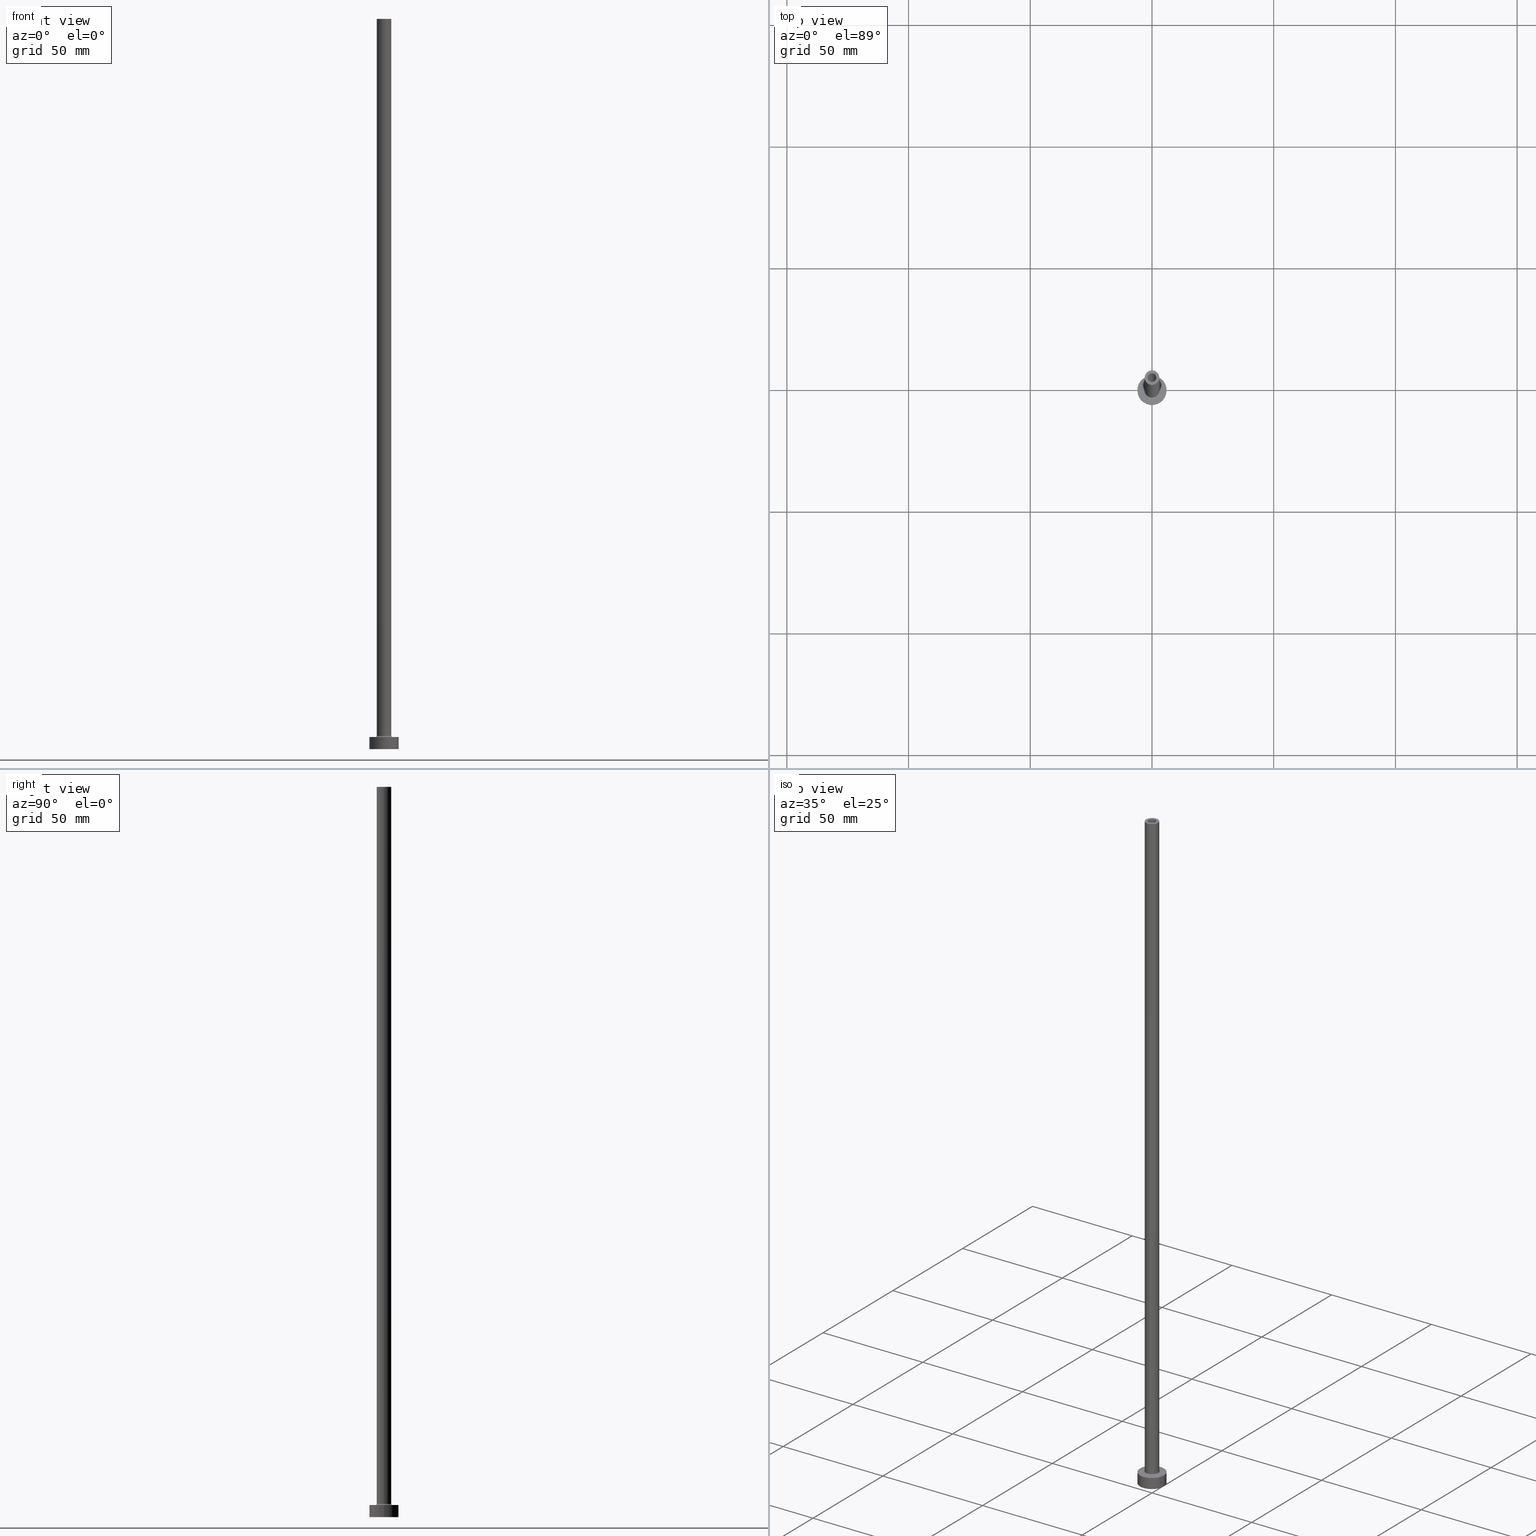
[diagram: canonical four-view strip — front | top / right | iso, engineering-drawing reading convention]
A machine part, canonical four-view strip (front | top / right | iso — engineering-drawing reading convention). The complete STEP part file that produces these views, byte-faithful:
ISO-10303-21;
HEADER;
FILE_DESCRIPTION (( 'STEP AP203' ),
    '1' );
FILE_NAME ('319c.STEP',
    '2023-02-13T17:50:03',
    ( '' ),
    ( '' ),
    'SwSTEP 2.0',
    'SolidWorks 2019',
    '' );
FILE_SCHEMA (( 'CONFIG_CONTROL_DESIGN' ));
ENDSEC;

DATA;
#1 = CC_DESIGN_PERSON_AND_ORGANIZATION_ASSIGNMENT ( #216, #87, ( #276 ) ) ;
#2 = LINE ( 'NONE', #259, #336 ) ;
#3 = VECTOR ( 'NONE', #429, 1000.000000000000000 ) ;
#4 = DIRECTION ( 'NONE',  ( 0.000000000000000000, -1.000000000000000000, 0.000000000000000000 ) ) ;
#5 = CIRCLE ( 'NONE', #277, 3.500000000000000444 ) ;
#6 = AXIS2_PLACEMENT_3D ( 'NONE', #55, #242, #278 ) ;
#7 = ORIENTED_EDGE ( 'NONE', *, *, #350, .F. ) ;
#8 = PERSON_AND_ORGANIZATION ( #438, #120 ) ;
#9 = VERTEX_POINT ( 'NONE', #264 ) ;
#10 = CARTESIAN_POINT ( 'NONE',  ( 0.000000000000000000, 0.000000000000000000, 300.0000000000000000 ) ) ;
#11 = SECURITY_CLASSIFICATION_LEVEL ( 'unclassified' ) ;
#12 = EDGE_CURVE ( 'NONE', #323, #47, #190, .T. ) ;
#13 = CARTESIAN_POINT ( 'NONE',  ( -3.000000000000000444, 0.000000000000000000, 300.0000000000000000 ) ) ;
#14 = CIRCLE ( 'NONE', #408, 1.899999999999999911 ) ;
#15 = AXIS2_PLACEMENT_3D ( 'NONE', #97, #341, #414 ) ;
#16 = EDGE_CURVE ( 'NONE', #47, #347, #5, .T. ) ;
#17 = FACE_OUTER_BOUND ( 'NONE', #330, .T. ) ;
#18 = VERTEX_POINT ( 'NONE', #227 ) ;
#19 = CARTESIAN_POINT ( 'NONE',  ( 0.000000000000000000, 0.000000000000000000, 260.3740115370177932 ) ) ;
#20 = ORIENTED_EDGE ( 'NONE', *, *, #176, .T. ) ;
#21 = CIRCLE ( 'NONE', #119, 3.500000000000000444 ) ;
#22 = PERSON_AND_ORGANIZATION_ROLE ( 'creator' ) ;
#23 = DIRECTION ( 'NONE',  ( 0.000000000000000000, 0.000000000000000000, 1.000000000000000000 ) ) ;
#24 = ORIENTED_EDGE ( 'NONE', *, *, #246, .T. ) ;
#25 = DIRECTION ( 'NONE',  ( -0.000000000000000000, -0.000000000000000000, -1.000000000000000000 ) ) ;
#26 = CYLINDRICAL_SURFACE ( 'NONE', #104, 1.750000000000000000 ) ;
#27 = CALENDAR_DATE ( 2023, 13, 2 ) ;
#28 = CIRCLE ( 'NONE', #298, 3.000000000000000444 ) ;
#29 = DIRECTION ( 'NONE',  ( 1.000000000000000000, 0.000000000000000000, 0.000000000000000000 ) ) ;
#30 = DIRECTION ( 'NONE',  ( 0.000000000000000000, 0.000000000000000000, 1.000000000000000000 ) ) ;
#31 = DIRECTION ( 'NONE',  ( -1.000000000000000000, 0.000000000000000000, 0.000000000000000000 ) ) ;
#32 = FACE_OUTER_BOUND ( 'NONE', #351, .T. ) ;
#33 = DATE_AND_TIME ( #368, #89 ) ;
#34 = CARTESIAN_POINT ( 'NONE',  ( -1.899999999999999911, 0.000000000000000000, 255.0000000000000000 ) ) ;
#35 = VECTOR ( 'NONE', #394, 1000.000000000000000 ) ;
#36 = VERTEX_POINT ( 'NONE', #34 ) ;
#37 = AXIS2_PLACEMENT_3D ( 'NONE', #114, #398, #304 ) ;
#38 = ADVANCED_FACE ( 'NONE', ( #65 ), #460, .F. ) ;
#39 = DIRECTION ( 'NONE',  ( 0.000000000000000000, 0.000000000000000000, -1.000000000000000000 ) ) ;
#40 = PERSON_AND_ORGANIZATION ( #438, #120 ) ;
#41 = EDGE_CURVE ( 'NONE', #295, #254, #444, .T. ) ;
#42 = DATE_TIME_ROLE ( 'classification_date' ) ;
#43 = APPROVAL ( #166, 'NEUR�EN�' ) ;
#44 = LINE ( 'NONE', #13, #77 ) ;
#45 = PRODUCT_DEFINITION_SHAPE ( 'NONE', 'NONE',  #196 ) ;
#46 = CARTESIAN_POINT ( 'NONE',  ( 0.000000000000000000, 0.000000000000000000, 255.0000000000000000 ) ) ;
#47 = VERTEX_POINT ( 'NONE', #103 ) ;
#48 = DIRECTION ( 'NONE',  ( 0.000000000000000000, 0.000000000000000000, 1.000000000000000000 ) ) ;
#49 = ORIENTED_EDGE ( 'NONE', *, *, #407, .T. ) ;
#50 = ADVANCED_FACE ( 'NONE', ( #309 ), #141, .F. ) ;
#51 = AXIS2_PLACEMENT_3D ( 'NONE', #459, #153, #169 ) ;
#52 = EDGE_LOOP ( 'NONE', ( #452, #431 ) ) ;
#53 = EDGE_LOOP ( 'NONE', ( #251, #285, #138, #59 ) ) ;
#54 = CYLINDRICAL_SURFACE ( 'NONE', #161, 3.000000000000000444 ) ;
#55 = CARTESIAN_POINT ( 'NONE',  ( 0.000000000000000000, 0.000000000000000000, 5.000000000000000000 ) ) ;
#56 = ORIENTED_EDGE ( 'NONE', *, *, #83, .F. ) ;
#57 = FACE_OUTER_BOUND ( 'NONE', #173, .T. ) ;
#58 = ORIENTED_EDGE ( 'NONE', *, *, #126, .F. ) ;
#59 = ORIENTED_EDGE ( 'NONE', *, *, #67, .T. ) ;
#60 = AXIS2_PLACEMENT_3D ( 'NONE', #116, #4, #39 ) ;
#61 = PERSON_AND_ORGANIZATION_ROLE ( 'creator' ) ;
#62 = AXIS2_PLACEMENT_3D ( 'NONE', #245, #133, #377 ) ;
#63 = DIRECTION ( 'NONE',  ( 0.000000000000000000, 0.000000000000000000, 1.000000000000000000 ) ) ;
#64 = EDGE_CURVE ( 'NONE', #335, #323, #44, .T. ) ;
#65 = FACE_OUTER_BOUND ( 'NONE', #158, .T. ) ;
#66 = APPROVAL_STATUS ( 'not_yet_approved' ) ;
#67 = EDGE_CURVE ( 'NONE', #84, #288, #91, .T. ) ;
#68 = CARTESIAN_POINT ( 'NONE',  ( 0.000000000000000000, 0.000000000000000000, 5.000000000000000000 ) ) ;
#69 = APPROVAL_STATUS ( 'not_yet_approved' ) ;
#70 = CARTESIAN_POINT ( 'NONE',  ( 0.000000000000000000, 0.000000000000000000, 5.500000000000005329 ) ) ;
#71 = DESIGN_CONTEXT ( 'detailed design', #334, 'design' ) ;
#72 = CARTESIAN_POINT ( 'NONE',  ( 0.000000000000000000, 0.000000000000000000, 0.000000000000000000 ) ) ;
#73 = APPROVAL_ROLE ( '' ) ;
#74 = AXIS2_PLACEMENT_3D ( 'NONE', #184, #146, #416 ) ;
#75 = SECURITY_CLASSIFICATION ( '', '', #11 ) ;
#76 = CYLINDRICAL_SURFACE ( 'NONE', #134, 1.899999999999999911 ) ;
#77 = VECTOR ( 'NONE', #203, 1000.000000000000000 ) ;
#78 = PERSON_AND_ORGANIZATION_ROLE ( 'classification_officer' ) ;
#79 = ORIENTED_EDGE ( 'NONE', *, *, #332, .F. ) ;
#80 = DIRECTION ( 'NONE',  ( -0.000000000000000000, -0.000000000000000000, -1.000000000000000000 ) ) ;
#81 = PERSON_AND_ORGANIZATION_ROLE ( 'design_owner' ) ;
#82 = SHAPE_DEFINITION_REPRESENTATION ( #45, #226 ) ;
#83 = EDGE_CURVE ( 'NONE', #254, #295, #136, .T. ) ;
#84 = VERTEX_POINT ( 'NONE', #305 ) ;
#85 = PRODUCT_RELATED_PRODUCT_CATEGORY ( 'detail', '', ( #130 ) ) ;
#86 = DIRECTION ( 'NONE',  ( 1.000000000000000000, 0.000000000000000000, 0.000000000000000000 ) ) ;
#87 = PERSON_AND_ORGANIZATION_ROLE ( 'design_supplier' ) ;
#88 = CIRCLE ( 'NONE', #342, 3.000000000000000444 ) ;
#89 = LOCAL_TIME ( 18, 50, 3.000000000000000000, #170 ) ;
#90 = UNCERTAINTY_MEASURE_WITH_UNIT (LENGTH_MEASURE( 1.000000000000000082E-05 ), #364, 'distance_accuracy_value', 'NONE');
#91 = CIRCLE ( 'NONE', #62, 1.899999999999999911 ) ;
#92 = DIRECTION ( 'NONE',  ( 1.000000000000000000, 0.000000000000000000, 0.000000000000000000 ) ) ;
#93 = DIRECTION ( 'NONE',  ( -0.000000000000000000, -0.000000000000000000, -1.000000000000000000 ) ) ;
#94 = APPROVAL_ROLE ( '' ) ;
#95 = CC_DESIGN_PERSON_AND_ORGANIZATION_ASSIGNMENT ( #191, #22, ( #196 ) ) ;
#96 = FACE_OUTER_BOUND ( 'NONE', #175, .T. ) ;
#97 = CARTESIAN_POINT ( 'NONE',  ( 0.000000000000000000, 0.000000000000000000, 5.500000000000005329 ) ) ;
#98 = CARTESIAN_POINT ( 'NONE',  ( -6.000000000000000888, 0.000000000000000000, 5.000000000000000000 ) ) ;
#99 = VECTOR ( 'NONE', #343, 1000.000000000000000 ) ;
#100 = LOCAL_TIME ( 18, 50, 3.000000000000000000, #453 ) ;
#101 = DIRECTION ( 'NONE',  ( 0.000000000000000000, 0.000000000000000000, 1.000000000000000000 ) ) ;
#102 = EDGE_LOOP ( 'NONE', ( #228, #378 ) ) ;
#103 = CARTESIAN_POINT ( 'NONE',  ( -3.500000000000000444, 4.286263797015737088E-16, 5.000000000000002665 ) ) ;
#104 = AXIS2_PLACEMENT_3D ( 'NONE', #162, #187, #289 ) ;
#105 = APPLICATION_PROTOCOL_DEFINITION ( 'international standard', 'config_control_design', 1994, #334 ) ;
#106 = VERTEX_POINT ( 'NONE', #413 ) ;
#107 = APPROVAL_DATE_TIME ( #118, #434 ) ;
#108 = AXIS2_PLACEMENT_3D ( 'NONE', #426, #111, #396 ) ;
#109 = ORIENTED_EDGE ( 'NONE', *, *, #344, .T. ) ;
#110 = CARTESIAN_POINT ( 'NONE',  ( 0.000000000000000000, 0.000000000000000000, 255.0000000000000000 ) ) ;
#111 = DIRECTION ( 'NONE',  ( 0.000000000000000000, 0.000000000000000000, 1.000000000000000000 ) ) ;
#112 = ADVANCED_FACE ( 'NONE', ( #17 ), #244, .T. ) ;
#113 = CARTESIAN_POINT ( 'NONE',  ( 1.750000000000000000, 2.143131898507867804E-16, 300.0000000000000000 ) ) ;
#114 = CARTESIAN_POINT ( 'NONE',  ( 0.000000000000000000, 0.000000000000000000, 300.0000000000000000 ) ) ;
#115 = CARTESIAN_POINT ( 'NONE',  ( 0.000000000000000000, 0.000000000000000000, 255.0000000000000000 ) ) ;
#116 = CARTESIAN_POINT ( 'NONE',  ( 3.500000000000000444, 0.000000000000000000, 5.500000000000005329 ) ) ;
#117 = DIRECTION ( 'NONE',  ( 0.000000000000000000, 0.000000000000000000, 1.000000000000000000 ) ) ;
#118 = DATE_AND_TIME ( #221, #349 ) ;
#119 = AXIS2_PLACEMENT_3D ( 'NONE', #127, #172, #412 ) ;
#120 = ORGANIZATION ( 'NEUR�EN�', 'NEUR�EN�', '' ) ;
#121 = CYLINDRICAL_SURFACE ( 'NONE', #387, 6.000000000000000888 ) ;
#122 = APPROVAL_DATE_TIME ( #160, #43 ) ;
#123 = FACE_OUTER_BOUND ( 'NONE', #149, .T. ) ;
#124 = PERSON_AND_ORGANIZATION ( #438, #120 ) ;
#125 = AXIS2_PLACEMENT_3D ( 'NONE', #46, #63, #255 ) ;
#126 = EDGE_CURVE ( 'NONE', #288, #84, #367, .T. ) ;
#127 = CARTESIAN_POINT ( 'NONE',  ( 0.000000000000000000, 0.000000000000000000, 5.000000000000000000 ) ) ;
#128 = AXIS2_PLACEMENT_3D ( 'NONE', #249, #381, #300 ) ;
#129 = DIRECTION ( 'NONE',  ( 1.000000000000000000, 0.000000000000000000, 0.000000000000000000 ) ) ;
#130 = PRODUCT ( '319c', '319c', '', ( #274 ) ) ;
#131 = ORIENTED_EDGE ( 'NONE', *, *, #308, .T. ) ;
#132 =( NAMED_UNIT ( * ) SI_UNIT ( $, .STERADIAN. ) SOLID_ANGLE_UNIT ( ) );
#133 = DIRECTION ( 'NONE',  ( -0.000000000000000000, -0.000000000000000000, -1.000000000000000000 ) ) ;
#134 = AXIS2_PLACEMENT_3D ( 'NONE', #222, #362, #31 ) ;
#135 = LOCAL_TIME ( 18, 50, 3.000000000000000000, #405 ) ;
#136 = CIRCLE ( 'NONE', #202, 6.000000000000000888 ) ;
#137 = EDGE_CURVE ( 'NONE', #9, #443, #194, .T. ) ;
#138 = ORIENTED_EDGE ( 'NONE', *, *, #192, .T. ) ;
#139 = CC_DESIGN_PERSON_AND_ORGANIZATION_ASSIGNMENT ( #404, #81, ( #130 ) ) ;
#140 = ORIENTED_EDGE ( 'NONE', *, *, #199, .T. ) ;
#141 = CYLINDRICAL_SURFACE ( 'NONE', #145, 1.899999999999999911 ) ;
#142 = ORIENTED_EDGE ( 'NONE', *, *, #411, .T. ) ;
#143 = EDGE_LOOP ( 'NONE', ( #24, #142, #385, #352 ) ) ;
#144 = LOCAL_TIME ( 18, 50, 3.000000000000000000, #284 ) ;
#145 = AXIS2_PLACEMENT_3D ( 'NONE', #19, #339, #209 ) ;
#146 = DIRECTION ( 'NONE',  ( 0.000000000000000000, 0.000000000000000000, 1.000000000000000000 ) ) ;
#147 = VERTEX_POINT ( 'NONE', #324 ) ;
#148 = DIRECTION ( 'NONE',  ( -0.000000000000000000, -0.000000000000000000, -1.000000000000000000 ) ) ;
#149 = EDGE_LOOP ( 'NONE', ( #406, #390, #180, #79 ) ) ;
#150 = ADVANCED_FACE ( 'NONE', ( #346, #389 ), #451, .T. ) ;
#151 = CARTESIAN_POINT ( 'NONE',  ( 0.000000000000000000, 0.000000000000000000, 300.0000000000000000 ) ) ;
#152 = VERTEX_POINT ( 'NONE', #359 ) ;
#153 = DIRECTION ( 'NONE',  ( 0.000000000000000000, 0.000000000000000000, 1.000000000000000000 ) ) ;
#154 = DIRECTION ( 'NONE',  ( 1.000000000000000000, 0.000000000000000000, -0.000000000000000000 ) ) ;
#155 = CARTESIAN_POINT ( 'NONE',  ( 0.000000000000000000, 0.000000000000000000, 300.0000000000000000 ) ) ;
#156 = ADVANCED_FACE ( 'NONE', ( #225, #322 ), #157, .F. ) ;
#157 = PLANE ( 'NONE',  #239 ) ;
#158 = EDGE_LOOP ( 'NONE', ( #198, #207, #266, #186 ) ) ;
#159 = DIRECTION ( 'NONE',  ( 0.000000000000000000, 0.000000000000000000, -1.000000000000000000 ) ) ;
#160 = DATE_AND_TIME ( #197, #135 ) ;
#161 = AXIS2_PLACEMENT_3D ( 'NONE', #177, #448, #253 ) ;
#162 = CARTESIAN_POINT ( 'NONE',  ( 0.000000000000000000, 0.000000000000000000, 300.0000000000000000 ) ) ;
#163 = EDGE_CURVE ( 'NONE', #233, #152, #403, .T. ) ;
#164 = ORIENTED_EDGE ( 'NONE', *, *, #246, .F. ) ;
#165 = CC_DESIGN_DATE_AND_TIME_ASSIGNMENT ( #292, #421, ( #196 ) ) ;
#166 = APPROVAL_STATUS ( 'not_yet_approved' ) ;
#167 = ADVANCED_FACE ( 'NONE', ( #365, #397 ), #355, .F. ) ;
#168 = EDGE_LOOP ( 'NONE', ( #369, #58 ) ) ;
#169 = DIRECTION ( 'NONE',  ( 1.000000000000000000, 0.000000000000000000, 0.000000000000000000 ) ) ;
#170 = COORDINATED_UNIVERSAL_TIME_OFFSET ( 1, 0, .AHEAD. ) ;
#171 = DIRECTION ( 'NONE',  ( 0.000000000000000000, 0.000000000000000000, -1.000000000000000000 ) ) ;
#172 = DIRECTION ( 'NONE',  ( -0.000000000000000000, -0.000000000000000000, -1.000000000000000000 ) ) ;
#173 = EDGE_LOOP ( 'NONE', ( #283, #174, #182, #218 ) ) ;
#174 = ORIENTED_EDGE ( 'NONE', *, *, #12, .T. ) ;
#175 = EDGE_LOOP ( 'NONE', ( #393, #140 ) ) ;
#176 = EDGE_CURVE ( 'NONE', #443, #347, #306, .T. ) ;
#177 = CARTESIAN_POINT ( 'NONE',  ( 0.000000000000000000, 0.000000000000000000, 300.0000000000000000 ) ) ;
#178 = CIRCLE ( 'NONE', #125, 1.750000000000000000 ) ;
#179 =( GEOMETRIC_REPRESENTATION_CONTEXT ( 3 ) GLOBAL_UNCERTAINTY_ASSIGNED_CONTEXT ( ( #90 ) ) GLOBAL_UNIT_ASSIGNED_CONTEXT ( ( #364, #267, #132 ) ) REPRESENTATION_CONTEXT ( 'NONE', 'WORKASPACE' ) );
#180 = ORIENTED_EDGE ( 'NONE', *, *, #392, .F. ) ;
#181 = CALENDAR_DATE ( 2023, 13, 2 ) ;
#182 = ORIENTED_EDGE ( 'NONE', *, *, #344, .F. ) ;
#183 = DATE_AND_TIME ( #27, #100 ) ;
#184 = CARTESIAN_POINT ( 'NONE',  ( 0.000000000000000000, 0.000000000000000000, 5.000000000000000000 ) ) ;
#185 = DIRECTION ( 'NONE',  ( 1.000000000000000000, 0.000000000000000000, 0.000000000000000000 ) ) ;
#186 = ORIENTED_EDGE ( 'NONE', *, *, #407, .F. ) ;
#187 = DIRECTION ( 'NONE',  ( 0.000000000000000000, 0.000000000000000000, -1.000000000000000000 ) ) ;
#188 = TOROIDAL_SURFACE ( 'NONE', #108, 3.500000000000000444, 0.5000000000000000000 ) ;
#189 = DIRECTION ( 'NONE',  ( -0.000000000000000000, -0.000000000000000000, -1.000000000000000000 ) ) ;
#190 = CIRCLE ( 'NONE', #206, 0.4999999999999995559 ) ;
#191 = PERSON_AND_ORGANIZATION ( #438, #120 ) ;
#192 = EDGE_CURVE ( 'NONE', #36, #84, #2, .T. ) ;
#193 = CARTESIAN_POINT ( 'NONE',  ( 6.000000000000000888, 7.347880794884120722E-16, 5.000000000000000000 ) ) ;
#194 = LINE ( 'NONE', #293, #3 ) ;
#195 = ORIENTED_EDGE ( 'NONE', *, *, #370, .T. ) ;
#196 = PRODUCT_DEFINITION ( 'NEZN�M�', '', #276, #71 ) ;
#197 = CALENDAR_DATE ( 2023, 13, 2 ) ;
#198 = ORIENTED_EDGE ( 'NONE', *, *, #163, .F. ) ;
#199 = EDGE_CURVE ( 'NONE', #9, #335, #28, .T. ) ;
#200 = AXIS2_PLACEMENT_3D ( 'NONE', #70, #354, #320 ) ;
#201 = CARTESIAN_POINT ( 'NONE',  ( 0.000000000000000000, 0.000000000000000000, 300.0000000000000000 ) ) ;
#202 = AXIS2_PLACEMENT_3D ( 'NONE', #374, #48, #282 ) ;
#203 = DIRECTION ( 'NONE',  ( -0.000000000000000000, -0.000000000000000000, -1.000000000000000000 ) ) ;
#204 = ORIENTED_EDGE ( 'NONE', *, *, #371, .F. ) ;
#205 = CIRCLE ( 'NONE', #372, 6.000000000000000888 ) ;
#206 = AXIS2_PLACEMENT_3D ( 'NONE', #395, #294, #427 ) ;
#207 = ORIENTED_EDGE ( 'NONE', *, *, #340, .T. ) ;
#208 = MANIFOLD_SOLID_BREP ( 'Odebrat vysunut�m4', #215 ) ;
#209 = DIRECTION ( 'NONE',  ( -1.000000000000000000, 0.000000000000000000, 0.000000000000000000 ) ) ;
#210 = ADVANCED_FACE ( 'NONE', ( #123 ), #26, .F. ) ;
#211 = ORIENTED_EDGE ( 'NONE', *, *, #16, .F. ) ;
#212 = DIRECTION ( 'NONE',  ( 1.000000000000000000, 0.000000000000000000, 0.000000000000000000 ) ) ;
#213 = CIRCLE ( 'NONE', #436, 6.000000000000000888 ) ;
#214 = EDGE_LOOP ( 'NONE', ( #311, #419, #316, #131 ) ) ;
#215 = CLOSED_SHELL ( 'NONE', ( #210, #270, #447, #291, #280, #112, #150, #167, #423, #383, #235, #50, #156, #38 ) ) ;
#216 = PERSON_AND_ORGANIZATION ( #438, #120 ) ;
#217 = LINE ( 'NONE', #376, #99 ) ;
#218 = ORIENTED_EDGE ( 'NONE', *, *, #176, .F. ) ;
#219 = DIRECTION ( 'NONE',  ( 1.000000000000000000, 0.000000000000000000, 0.000000000000000000 ) ) ;
#220 = DIRECTION ( 'NONE',  ( 0.000000000000000000, 0.000000000000000000, 1.000000000000000000 ) ) ;
#221 = CALENDAR_DATE ( 2023, 13, 2 ) ;
#222 = CARTESIAN_POINT ( 'NONE',  ( 0.000000000000000000, 0.000000000000000000, 260.3740115370177932 ) ) ;
#223 = DIRECTION ( 'NONE',  ( 1.000000000000000000, 0.000000000000000000, 0.000000000000000000 ) ) ;
#224 = ORIENTED_EDGE ( 'NONE', *, *, #16, .T. ) ;
#225 = FACE_BOUND ( 'NONE', #256, .T. ) ;
#226 = ADVANCED_BREP_SHAPE_REPRESENTATION ( '319c', ( #208, #328 ), #179 ) ;
#227 = CARTESIAN_POINT ( 'NONE',  ( 6.000000000000000888, 7.347880794884120722E-16, 0.000000000000000000 ) ) ;
#228 = ORIENTED_EDGE ( 'NONE', *, *, #370, .F. ) ;
#229 = EDGE_CURVE ( 'NONE', #456, #233, #326, .T. ) ;
#230 = CARTESIAN_POINT ( 'NONE',  ( 0.000000000000000000, 0.000000000000000000, 0.000000000000000000 ) ) ;
#231 = AXIS2_PLACEMENT_3D ( 'NONE', #358, #25, #318 ) ;
#232 = APPROVAL_PERSON_ORGANIZATION ( #40, #418, #319 ) ;
#233 = VERTEX_POINT ( 'NONE', #425 ) ;
#234 = CARTESIAN_POINT ( 'NONE',  ( 0.000000000000000000, 0.000000000000000000, 255.0000000000000000 ) ) ;
#235 = ADVANCED_FACE ( 'NONE', ( #290 ), #188, .F. ) ;
#236 = CARTESIAN_POINT ( 'NONE',  ( 1.899999999999999911, 2.326828918379971365E-16, 255.0000000000000000 ) ) ;
#237 = EDGE_CURVE ( 'NONE', #443, #323, #400, .T. ) ;
#238 = PLANE ( 'NONE',  #435 ) ;
#239 = AXIS2_PLACEMENT_3D ( 'NONE', #110, #30, #154 ) ;
#240 = APPROVAL_PERSON_ORGANIZATION ( #261, #434, #73 ) ;
#241 = DIRECTION ( 'NONE',  ( 0.000000000000000000, 0.000000000000000000, 1.000000000000000000 ) ) ;
#242 = DIRECTION ( 'NONE',  ( 0.000000000000000000, 0.000000000000000000, 1.000000000000000000 ) ) ;
#243 = EDGE_CURVE ( 'NONE', #335, #9, #88, .T. ) ;
#244 = CYLINDRICAL_SURFACE ( 'NONE', #128, 6.000000000000000888 ) ;
#245 = CARTESIAN_POINT ( 'NONE',  ( 0.000000000000000000, 0.000000000000000000, 0.000000000000000000 ) ) ;
#246 = EDGE_CURVE ( 'NONE', #36, #382, #357, .T. ) ;
#247 = ORIENTED_EDGE ( 'NONE', *, *, #265, .F. ) ;
#248 = EDGE_LOOP ( 'NONE', ( #109, #224 ) ) ;
#249 = CARTESIAN_POINT ( 'NONE',  ( 0.000000000000000000, 0.000000000000000000, 5.000000000000000000 ) ) ;
#250 = CC_DESIGN_APPROVAL ( #43, ( #75 ) ) ;
#251 = ORIENTED_EDGE ( 'NONE', *, *, #411, .F. ) ;
#252 = ORIENTED_EDGE ( 'NONE', *, *, #371, .T. ) ;
#253 = DIRECTION ( 'NONE',  ( -1.000000000000000000, 0.000000000000000000, 0.000000000000000000 ) ) ;
#254 = VERTEX_POINT ( 'NONE', #193 ) ;
#255 = DIRECTION ( 'NONE',  ( 1.000000000000000000, 0.000000000000000000, 0.000000000000000000 ) ) ;
#256 = EDGE_LOOP ( 'NONE', ( #360, #49 ) ) ;
#257 = EDGE_LOOP ( 'NONE', ( #302, #422, #433, #279 ) ) ;
#258 = ORIENTED_EDGE ( 'NONE', *, *, #455, .T. ) ;
#259 = CARTESIAN_POINT ( 'NONE',  ( -1.899999999999999911, 0.000000000000000000, 260.3740115370177932 ) ) ;
#260 = DIRECTION ( 'NONE',  ( 0.000000000000000000, 0.000000000000000000, 1.000000000000000000 ) ) ;
#261 = PERSON_AND_ORGANIZATION ( #438, #120 ) ;
#262 = LINE ( 'NONE', #461, #366 ) ;
#263 = CIRCLE ( 'NONE', #312, 1.750000000000000000 ) ;
#264 = CARTESIAN_POINT ( 'NONE',  ( 3.000000000000000444, 3.673940397442060361E-16, 300.0000000000000000 ) ) ;
#265 = EDGE_CURVE ( 'NONE', #254, #18, #262, .T. ) ;
#266 = ORIENTED_EDGE ( 'NONE', *, *, #332, .T. ) ;
#267 =( NAMED_UNIT ( * ) PLANE_ANGLE_UNIT ( ) SI_UNIT ( $, .RADIAN. ) );
#268 = FACE_OUTER_BOUND ( 'NONE', #257, .T. ) ;
#269 = CIRCLE ( 'NONE', #317, 1.750000000000000000 ) ;
#270 = ADVANCED_FACE ( 'NONE', ( #399 ), #76, .F. ) ;
#271 = FACE_BOUND ( 'NONE', #446, .T. ) ;
#272 = CARTESIAN_POINT ( 'NONE',  ( 0.000000000000000000, 0.000000000000000000, 0.000000000000000000 ) ) ;
#273 = LINE ( 'NONE', #440, #442 ) ;
#274 = MECHANICAL_CONTEXT ( 'NONE', #310, 'mechanical' ) ;
#275 = AXIS2_PLACEMENT_3D ( 'NONE', #72, #363, #297 ) ;
#276 = PRODUCT_DEFINITION_FORMATION_WITH_SPECIFIED_SOURCE ( 'LIBOVOLN�', '', #130, .NOT_KNOWN. ) ;
#277 = AXIS2_PLACEMENT_3D ( 'NONE', #68, #189, #219 ) ;
#278 = DIRECTION ( 'NONE',  ( 1.000000000000000000, 0.000000000000000000, 0.000000000000000000 ) ) ;
#279 = ORIENTED_EDGE ( 'NONE', *, *, #64, .F. ) ;
#280 = ADVANCED_FACE ( 'NONE', ( #32 ), #121, .T. ) ;
#281 = FACE_OUTER_BOUND ( 'NONE', #214, .T. ) ;
#282 = DIRECTION ( 'NONE',  ( 1.000000000000000000, 0.000000000000000000, 0.000000000000000000 ) ) ;
#283 = ORIENTED_EDGE ( 'NONE', *, *, #308, .F. ) ;
#284 = COORDINATED_UNIVERSAL_TIME_OFFSET ( 1, 0, .AHEAD. ) ;
#285 = ORIENTED_EDGE ( 'NONE', *, *, #350, .T. ) ;
#286 = EDGE_LOOP ( 'NONE', ( #454, #314, #20, #211 ) ) ;
#287 = CC_DESIGN_APPROVAL ( #418, ( #196 ) ) ;
#288 = VERTEX_POINT ( 'NONE', #296 ) ;
#289 = DIRECTION ( 'NONE',  ( -1.000000000000000000, 0.000000000000000000, 0.000000000000000000 ) ) ;
#290 = FACE_OUTER_BOUND ( 'NONE', #286, .T. ) ;
#291 = ADVANCED_FACE ( 'NONE', ( #268 ), #432, .T. ) ;
#292 = DATE_AND_TIME ( #181, #144 ) ;
#293 = CARTESIAN_POINT ( 'NONE',  ( 3.000000000000000444, 3.673940397442060361E-16, 300.0000000000000000 ) ) ;
#294 = DIRECTION ( 'NONE',  ( 1.224646799147353207E-16, 1.000000000000000000, -0.000000000000000000 ) ) ;
#295 = VERTEX_POINT ( 'NONE', #321 ) ;
#296 = CARTESIAN_POINT ( 'NONE',  ( 1.899999999999999911, 2.326828918379971365E-16, 0.000000000000000000 ) ) ;
#297 = DIRECTION ( 'NONE',  ( 1.000000000000000000, 0.000000000000000000, -0.000000000000000000 ) ) ;
#298 = AXIS2_PLACEMENT_3D ( 'NONE', #430, #327, #86 ) ;
#299 = CARTESIAN_POINT ( 'NONE',  ( 3.500000000000000444, 0.000000000000000000, 5.000000000000002665 ) ) ;
#300 = DIRECTION ( 'NONE',  ( -1.000000000000000000, 0.000000000000000000, 0.000000000000000000 ) ) ;
#301 = CC_DESIGN_DATE_AND_TIME_ASSIGNMENT ( #33, #42, ( #75 ) ) ;
#302 = ORIENTED_EDGE ( 'NONE', *, *, #199, .F. ) ;
#303 = CARTESIAN_POINT ( 'NONE',  ( -1.750000000000000000, 0.000000000000000000, 300.0000000000000000 ) ) ;
#304 = DIRECTION ( 'NONE',  ( -1.000000000000000000, 0.000000000000000000, 0.000000000000000000 ) ) ;
#305 = CARTESIAN_POINT ( 'NONE',  ( -1.899999999999999911, 0.000000000000000000, 0.000000000000000000 ) ) ;
#306 = CIRCLE ( 'NONE', #60, 0.5000000000000004441 ) ;
#307 = DIRECTION ( 'NONE',  ( 1.000000000000000000, 0.000000000000000000, 0.000000000000000000 ) ) ;
#308 = EDGE_CURVE ( 'NONE', #323, #443, #424, .T. ) ;
#309 = FACE_OUTER_BOUND ( 'NONE', #53, .T. ) ;
#310 = APPLICATION_CONTEXT ( 'configuration controlled 3d designs of mechanical parts and assemblies' ) ;
#311 = ORIENTED_EDGE ( 'NONE', *, *, #137, .F. ) ;
#312 = AXIS2_PLACEMENT_3D ( 'NONE', #10, #437, #333 ) ;
#313 = DIRECTION ( 'NONE',  ( 0.000000000000000000, 0.000000000000000000, 1.000000000000000000 ) ) ;
#314 = ORIENTED_EDGE ( 'NONE', *, *, #237, .F. ) ;
#315 = ORIENTED_EDGE ( 'NONE', *, *, #229, .F. ) ;
#316 = ORIENTED_EDGE ( 'NONE', *, *, #64, .T. ) ;
#317 = AXIS2_PLACEMENT_3D ( 'NONE', #345, #313, #212 ) ;
#318 = DIRECTION ( 'NONE',  ( -1.000000000000000000, 0.000000000000000000, 0.000000000000000000 ) ) ;
#319 = APPROVAL_ROLE ( '' ) ;
#320 = DIRECTION ( 'NONE',  ( 1.000000000000000000, 0.000000000000000000, 0.000000000000000000 ) ) ;
#321 = CARTESIAN_POINT ( 'NONE',  ( -6.000000000000000888, 0.000000000000000000, 5.000000000000000000 ) ) ;
#322 = FACE_OUTER_BOUND ( 'NONE', #417, .T. ) ;
#323 = VERTEX_POINT ( 'NONE', #415 ) ;
#324 = CARTESIAN_POINT ( 'NONE',  ( -6.000000000000000888, 0.000000000000000000, 0.000000000000000000 ) ) ;
#325 = DIRECTION ( 'NONE',  ( -1.000000000000000000, 0.000000000000000000, 0.000000000000000000 ) ) ;
#326 = CIRCLE ( 'NONE', #379, 1.750000000000000000 ) ;
#327 = DIRECTION ( 'NONE',  ( 0.000000000000000000, 0.000000000000000000, 1.000000000000000000 ) ) ;
#328 = AXIS2_PLACEMENT_3D ( 'NONE', #230, #117, #223 ) ;
#329 = CC_DESIGN_PERSON_AND_ORGANIZATION_ASSIGNMENT ( #386, #61, ( #276 ) ) ;
#330 = EDGE_LOOP ( 'NONE', ( #247, #449, #252, #195 ) ) ;
#331 = APPLICATION_PROTOCOL_DEFINITION ( 'international standard', 'config_control_design', 1994, #310 ) ;
#332 = EDGE_CURVE ( 'NONE', #456, #106, #273, .T. ) ;
#333 = DIRECTION ( 'NONE',  ( 1.000000000000000000, 0.000000000000000000, 0.000000000000000000 ) ) ;
#334 = APPLICATION_CONTEXT ( 'configuration controlled 3d designs of mechanical parts and assemblies' ) ;
#335 = VERTEX_POINT ( 'NONE', #439 ) ;
#336 = VECTOR ( 'NONE', #159, 1000.000000000000000 ) ;
#337 = CARTESIAN_POINT ( 'NONE',  ( 0.000000000000000000, 0.000000000000000000, 0.000000000000000000 ) ) ;
#338 = DIRECTION ( 'NONE',  ( 0.000000000000000000, 0.000000000000000000, 1.000000000000000000 ) ) ;
#339 = DIRECTION ( 'NONE',  ( 0.000000000000000000, 0.000000000000000000, -1.000000000000000000 ) ) ;
#340 = EDGE_CURVE ( 'NONE', #233, #456, #263, .T. ) ;
#341 = DIRECTION ( 'NONE',  ( 0.000000000000000000, 0.000000000000000000, 1.000000000000000000 ) ) ;
#342 = AXIS2_PLACEMENT_3D ( 'NONE', #155, #220, #356 ) ;
#343 = DIRECTION ( 'NONE',  ( 0.000000000000000000, 0.000000000000000000, -1.000000000000000000 ) ) ;
#344 = EDGE_CURVE ( 'NONE', #347, #47, #21, .T. ) ;
#345 = CARTESIAN_POINT ( 'NONE',  ( 0.000000000000000000, 0.000000000000000000, 255.0000000000000000 ) ) ;
#346 = FACE_BOUND ( 'NONE', #248, .T. ) ;
#347 = VERTEX_POINT ( 'NONE', #299 ) ;
#348 = TOROIDAL_SURFACE ( 'NONE', #15, 3.500000000000000444, 0.5000000000000000000 ) ;
#349 = LOCAL_TIME ( 18, 50, 3.000000000000000000, #353 ) ;
#350 = EDGE_CURVE ( 'NONE', #382, #36, #14, .T. ) ;
#351 = EDGE_LOOP ( 'NONE', ( #56, #420, #258, #204 ) ) ;
#352 = ORIENTED_EDGE ( 'NONE', *, *, #192, .F. ) ;
#353 = COORDINATED_UNIVERSAL_TIME_OFFSET ( 1, 0, .AHEAD. ) ;
#354 = DIRECTION ( 'NONE',  ( 0.000000000000000000, 0.000000000000000000, 1.000000000000000000 ) ) ;
#355 = PLANE ( 'NONE',  #275 ) ;
#356 = DIRECTION ( 'NONE',  ( 1.000000000000000000, 0.000000000000000000, 0.000000000000000000 ) ) ;
#357 = CIRCLE ( 'NONE', #450, 1.899999999999999911 ) ;
#358 = CARTESIAN_POINT ( 'NONE',  ( 0.000000000000000000, 0.000000000000000000, 300.0000000000000000 ) ) ;
#359 = CARTESIAN_POINT ( 'NONE',  ( 1.750000000000000000, 2.143131898507867804E-16, 255.0000000000000000 ) ) ;
#360 = ORIENTED_EDGE ( 'NONE', *, *, #392, .T. ) ;
#361 = AXIS2_PLACEMENT_3D ( 'NONE', #272, #148, #92 ) ;
#362 = DIRECTION ( 'NONE',  ( 0.000000000000000000, 0.000000000000000000, -1.000000000000000000 ) ) ;
#363 = DIRECTION ( 'NONE',  ( 0.000000000000000000, 0.000000000000000000, 1.000000000000000000 ) ) ;
#364 =( LENGTH_UNIT ( ) NAMED_UNIT ( * ) SI_UNIT ( .MILLI., .METRE. ) );
#365 = FACE_BOUND ( 'NONE', #168, .T. ) ;
#366 = VECTOR ( 'NONE', #428, 1000.000000000000000 ) ;
#367 = CIRCLE ( 'NONE', #361, 1.899999999999999911 ) ;
#368 = CALENDAR_DATE ( 2023, 13, 2 ) ;
#369 = ORIENTED_EDGE ( 'NONE', *, *, #67, .F. ) ;
#370 = EDGE_CURVE ( 'NONE', #147, #18, #205, .T. ) ;
#371 = EDGE_CURVE ( 'NONE', #295, #147, #375, .T. ) ;
#372 = AXIS2_PLACEMENT_3D ( 'NONE', #410, #445, #129 ) ;
#373 = DIRECTION ( 'NONE',  ( 1.000000000000000000, 0.000000000000000000, -0.000000000000000000 ) ) ;
#374 = CARTESIAN_POINT ( 'NONE',  ( 0.000000000000000000, 0.000000000000000000, 5.000000000000000000 ) ) ;
#375 = LINE ( 'NONE', #98, #457 ) ;
#376 = CARTESIAN_POINT ( 'NONE',  ( 1.899999999999999911, 2.326828918379971365E-16, 260.3740115370177932 ) ) ;
#377 = DIRECTION ( 'NONE',  ( 1.000000000000000000, 0.000000000000000000, 0.000000000000000000 ) ) ;
#378 = ORIENTED_EDGE ( 'NONE', *, *, #455, .F. ) ;
#379 = AXIS2_PLACEMENT_3D ( 'NONE', #151, #260, #185 ) ;
#380 = CC_DESIGN_APPROVAL ( #434, ( #276 ) ) ;
#381 = DIRECTION ( 'NONE',  ( -0.000000000000000000, -0.000000000000000000, -1.000000000000000000 ) ) ;
#382 = VERTEX_POINT ( 'NONE', #236 ) ;
#383 = ADVANCED_FACE ( 'NONE', ( #271, #96 ), #238, .T. ) ;
#384 = CARTESIAN_POINT ( 'NONE',  ( 3.000000000000000444, 3.673940397442060361E-16, 5.500000000000005329 ) ) ;
#385 = ORIENTED_EDGE ( 'NONE', *, *, #126, .T. ) ;
#386 = PERSON_AND_ORGANIZATION ( #438, #120 ) ;
#387 = AXIS2_PLACEMENT_3D ( 'NONE', #402, #80, #325 ) ;
#388 = CC_DESIGN_SECURITY_CLASSIFICATION ( #75, ( #276 ) ) ;
#389 = FACE_OUTER_BOUND ( 'NONE', #52, .T. ) ;
#390 = ORIENTED_EDGE ( 'NONE', *, *, #163, .T. ) ;
#391 = APPROVAL_DATE_TIME ( #183, #418 ) ;
#392 = EDGE_CURVE ( 'NONE', #106, #152, #178, .T. ) ;
#393 = ORIENTED_EDGE ( 'NONE', *, *, #243, .T. ) ;
#394 = DIRECTION ( 'NONE',  ( 0.000000000000000000, 0.000000000000000000, -1.000000000000000000 ) ) ;
#395 = CARTESIAN_POINT ( 'NONE',  ( -3.500000000000000444, 4.286263797015737088E-16, 5.500000000000005329 ) ) ;
#396 = DIRECTION ( 'NONE',  ( 1.000000000000000000, 0.000000000000000000, 0.000000000000000000 ) ) ;
#397 = FACE_OUTER_BOUND ( 'NONE', #102, .T. ) ;
#398 = DIRECTION ( 'NONE',  ( 0.000000000000000000, 0.000000000000000000, -1.000000000000000000 ) ) ;
#399 = FACE_OUTER_BOUND ( 'NONE', #143, .T. ) ;
#400 = CIRCLE ( 'NONE', #200, 3.000000000000000444 ) ;
#401 = APPROVAL_PERSON_ORGANIZATION ( #8, #43, #94 ) ;
#402 = CARTESIAN_POINT ( 'NONE',  ( 0.000000000000000000, 0.000000000000000000, 5.000000000000000000 ) ) ;
#403 = LINE ( 'NONE', #113, #35 ) ;
#404 = PERSON_AND_ORGANIZATION ( #438, #120 ) ;
#405 = COORDINATED_UNIVERSAL_TIME_OFFSET ( 1, 0, .AHEAD. ) ;
#406 = ORIENTED_EDGE ( 'NONE', *, *, #229, .T. ) ;
#407 = EDGE_CURVE ( 'NONE', #152, #106, #269, .T. ) ;
#408 = AXIS2_PLACEMENT_3D ( 'NONE', #234, #101, #307 ) ;
#409 = CC_DESIGN_PERSON_AND_ORGANIZATION_ASSIGNMENT ( #124, #78, ( #75 ) ) ;
#410 = CARTESIAN_POINT ( 'NONE',  ( 0.000000000000000000, 0.000000000000000000, 0.000000000000000000 ) ) ;
#411 = EDGE_CURVE ( 'NONE', #382, #288, #217, .T. ) ;
#412 = DIRECTION ( 'NONE',  ( 1.000000000000000000, 0.000000000000000000, 0.000000000000000000 ) ) ;
#413 = CARTESIAN_POINT ( 'NONE',  ( -1.750000000000000000, 0.000000000000000000, 255.0000000000000000 ) ) ;
#414 = DIRECTION ( 'NONE',  ( 1.000000000000000000, 0.000000000000000000, 0.000000000000000000 ) ) ;
#415 = CARTESIAN_POINT ( 'NONE',  ( -3.000000000000000444, 0.000000000000000000, 5.500000000000005329 ) ) ;
#416 = DIRECTION ( 'NONE',  ( 1.000000000000000000, 0.000000000000000000, -0.000000000000000000 ) ) ;
#417 = EDGE_LOOP ( 'NONE', ( #164, #7 ) ) ;
#418 = APPROVAL ( #69, 'NEUR�EN�' ) ;
#419 = ORIENTED_EDGE ( 'NONE', *, *, #243, .F. ) ;
#420 = ORIENTED_EDGE ( 'NONE', *, *, #265, .T. ) ;
#421 = DATE_TIME_ROLE ( 'creation_date' ) ;
#422 = ORIENTED_EDGE ( 'NONE', *, *, #137, .T. ) ;
#423 = ADVANCED_FACE ( 'NONE', ( #281 ), #54, .T. ) ;
#424 = CIRCLE ( 'NONE', #51, 3.000000000000000444 ) ;
#425 = CARTESIAN_POINT ( 'NONE',  ( 1.750000000000000000, 2.143131898507867804E-16, 300.0000000000000000 ) ) ;
#426 = CARTESIAN_POINT ( 'NONE',  ( 0.000000000000000000, 0.000000000000000000, 5.500000000000005329 ) ) ;
#427 = DIRECTION ( 'NONE',  ( -1.000000000000000000, 1.224646799147354440E-16, 0.000000000000000000 ) ) ;
#428 = DIRECTION ( 'NONE',  ( -0.000000000000000000, -0.000000000000000000, -1.000000000000000000 ) ) ;
#429 = DIRECTION ( 'NONE',  ( -0.000000000000000000, -0.000000000000000000, -1.000000000000000000 ) ) ;
#430 = CARTESIAN_POINT ( 'NONE',  ( 0.000000000000000000, 0.000000000000000000, 300.0000000000000000 ) ) ;
#431 = ORIENTED_EDGE ( 'NONE', *, *, #83, .T. ) ;
#432 = CYLINDRICAL_SURFACE ( 'NONE', #231, 3.000000000000000444 ) ;
#433 = ORIENTED_EDGE ( 'NONE', *, *, #237, .T. ) ;
#434 = APPROVAL ( #66, 'NEUR�EN�' ) ;
#435 = AXIS2_PLACEMENT_3D ( 'NONE', #201, #241, #373 ) ;
#436 = AXIS2_PLACEMENT_3D ( 'NONE', #337, #338, #441 ) ;
#437 = DIRECTION ( 'NONE',  ( 0.000000000000000000, 0.000000000000000000, 1.000000000000000000 ) ) ;
#438 = PERSON ( 'NEUR�EN�', 'NEUR�EN�', 'NEUR�EN�', ('NEUR�EN�'), ('NEUR�EN�'), ('NEUR�EN�') ) ;
#439 = CARTESIAN_POINT ( 'NONE',  ( -3.000000000000000444, 0.000000000000000000, 300.0000000000000000 ) ) ;
#440 = CARTESIAN_POINT ( 'NONE',  ( -1.750000000000000000, 0.000000000000000000, 300.0000000000000000 ) ) ;
#441 = DIRECTION ( 'NONE',  ( 1.000000000000000000, 0.000000000000000000, 0.000000000000000000 ) ) ;
#442 = VECTOR ( 'NONE', #171, 1000.000000000000000 ) ;
#443 = VERTEX_POINT ( 'NONE', #384 ) ;
#444 = CIRCLE ( 'NONE', #6, 6.000000000000000888 ) ;
#445 = DIRECTION ( 'NONE',  ( 0.000000000000000000, 0.000000000000000000, 1.000000000000000000 ) ) ;
#446 = EDGE_LOOP ( 'NONE', ( #315, #458 ) ) ;
#447 = ADVANCED_FACE ( 'NONE', ( #57 ), #348, .F. ) ;
#448 = DIRECTION ( 'NONE',  ( -0.000000000000000000, -0.000000000000000000, -1.000000000000000000 ) ) ;
#449 = ORIENTED_EDGE ( 'NONE', *, *, #41, .F. ) ;
#450 = AXIS2_PLACEMENT_3D ( 'NONE', #115, #23, #29 ) ;
#451 = PLANE ( 'NONE',  #74 ) ;
#452 = ORIENTED_EDGE ( 'NONE', *, *, #41, .T. ) ;
#453 = COORDINATED_UNIVERSAL_TIME_OFFSET ( 1, 0, .AHEAD. ) ;
#454 = ORIENTED_EDGE ( 'NONE', *, *, #12, .F. ) ;
#455 = EDGE_CURVE ( 'NONE', #18, #147, #213, .T. ) ;
#456 = VERTEX_POINT ( 'NONE', #303 ) ;
#457 = VECTOR ( 'NONE', #93, 1000.000000000000000 ) ;
#458 = ORIENTED_EDGE ( 'NONE', *, *, #340, .F. ) ;
#459 = CARTESIAN_POINT ( 'NONE',  ( 0.000000000000000000, 0.000000000000000000, 5.500000000000005329 ) ) ;
#460 = CYLINDRICAL_SURFACE ( 'NONE', #37, 1.750000000000000000 ) ;
#461 = CARTESIAN_POINT ( 'NONE',  ( 6.000000000000000888, 7.347880794884120722E-16, 5.000000000000000000 ) ) ;
ENDSEC;
END-ISO-10303-21;
